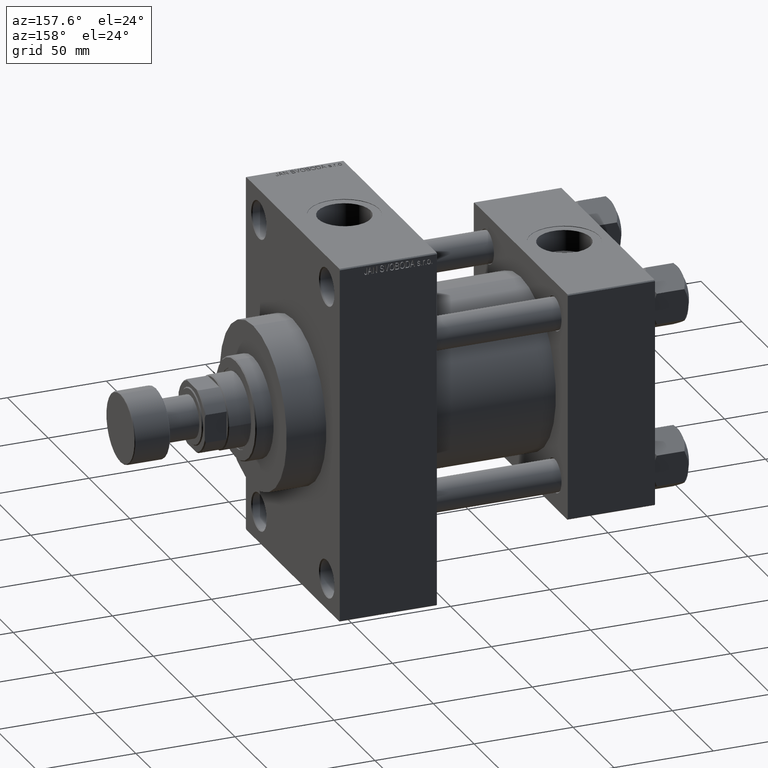
[diagram: clean part render]
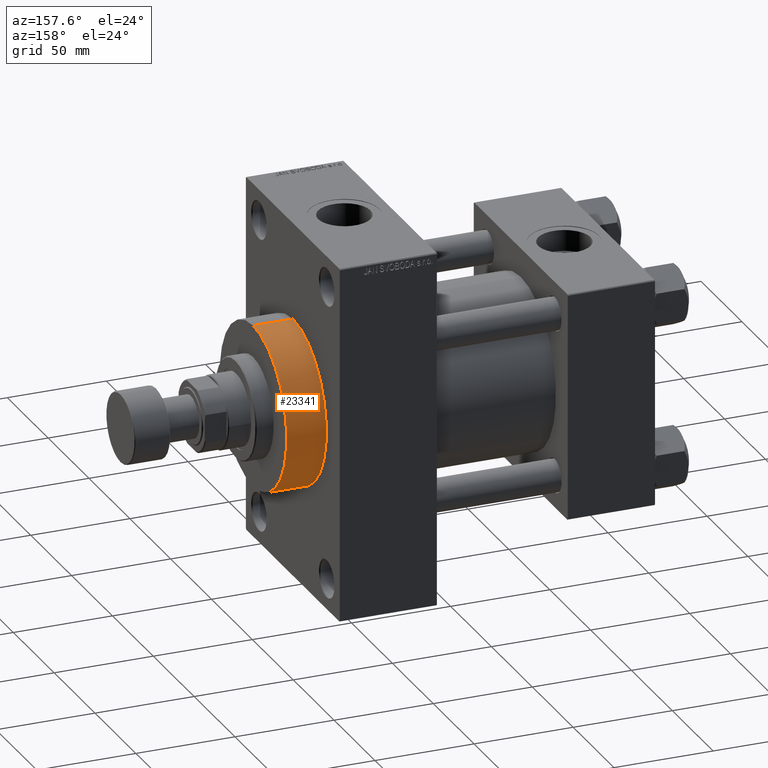
[diagram: same view with one face highlighted and labeled with its STEP entity id]
A machine part, auxiliary view. The second image highlights one B-rep face of the part: STEP entity #23341.
In plain terms, the highlighted cylindrical surface (partial cylindrical patch) has radius 41 mm, axis along (-1, -0, -0).
Its self-contained STEP definition (entity closure, byte-faithful):
#1641 = CARTESIAN_POINT ( 'NONE',  ( 179.0000000000000000, 0.000000000000000000, 41.00000000000000000 ) ) ;
#2254 = ORIENTED_EDGE ( 'NONE', *, *, #38127, .T. ) ;
#3250 = DIRECTION ( 'NONE',  ( 0.000000000000000000, 0.000000000000000000, 1.000000000000000000 ) ) ;
#3586 = CARTESIAN_POINT ( 'NONE',  ( 179.0000000000000000, 0.000000000000000000, 41.00000000000000000 ) ) ;
#3616 = EDGE_LOOP ( 'NONE', ( #21761, #34986, #2254, #41075 ) ) ;
#3865 = CARTESIAN_POINT ( 'NONE',  ( 179.0000000000000000, 5.021051876504148963E-15, -41.00000000000000000 ) ) ;
#6092 = VERTEX_POINT ( 'NONE', #3586 ) ;
#7386 = DIRECTION ( 'NONE',  ( 1.000000000000000000, 0.000000000000000000, 0.000000000000000000 ) ) ;
#8469 = DIRECTION ( 'NONE',  ( -1.000000000000000000, -0.000000000000000000, -0.000000000000000000 ) ) ;
#10193 = AXIS2_PLACEMENT_3D ( 'NONE', #27478, #7386, #41844 ) ;
#11102 = CARTESIAN_POINT ( 'NONE',  ( 179.0000000000000000, 5.021051876504148963E-15, -41.00000000000000000 ) ) ;
#14684 = AXIS2_PLACEMENT_3D ( 'NONE', #36731, #35774, #28218 ) ;
#16352 = VERTEX_POINT ( 'NONE', #36199 ) ;
#17372 = CARTESIAN_POINT ( 'NONE',  ( 179.0000000000000000, 0.000000000000000000, 0.000000000000000000 ) ) ;
#17606 = FACE_OUTER_BOUND ( 'NONE', #3616, .T. ) ;
#19341 = CIRCLE ( 'NONE', #14684, 41.00000000000000000 ) ;
#21761 = ORIENTED_EDGE ( 'NONE', *, *, #43470, .F. ) ;
#23341 = ADVANCED_FACE ( 'NONE', ( #17606 ), #36577, .T. ) ;
#24904 = VERTEX_POINT ( 'NONE', #3865 ) ;
#25168 = AXIS2_PLACEMENT_3D ( 'NONE', #17372, #33170, #3250 ) ;
#25270 = EDGE_CURVE ( 'NONE', #24904, #16352, #25690, .T. ) ;
#25690 = LINE ( 'NONE', #11102, #39255 ) ;
#26945 = LINE ( 'NONE', #1641, #46617 ) ;
#27478 = CARTESIAN_POINT ( 'NONE',  ( 179.0000000000000000, 0.000000000000000000, 0.000000000000000000 ) ) ;
#28218 = DIRECTION ( 'NONE',  ( 0.000000000000000000, 0.000000000000000000, -1.000000000000000000 ) ) ;
#30511 = CARTESIAN_POINT ( 'NONE',  ( 159.0000000000000000, 0.000000000000000000, 41.00000000000000000 ) ) ;
#33170 = DIRECTION ( 'NONE',  ( -1.000000000000000000, -0.000000000000000000, -0.000000000000000000 ) ) ;
#34986 = ORIENTED_EDGE ( 'NONE', *, *, #25270, .T. ) ;
#35774 = DIRECTION ( 'NONE',  ( 1.000000000000000000, 0.000000000000000000, 0.000000000000000000 ) ) ;
#36199 = CARTESIAN_POINT ( 'NONE',  ( 159.0000000000000000, 5.021051876504148963E-15, -41.00000000000000000 ) ) ;
#36577 = CYLINDRICAL_SURFACE ( 'NONE', #25168, 41.00000000000000000 ) ;
#36731 = CARTESIAN_POINT ( 'NONE',  ( 159.0000000000000000, 0.000000000000000000, 0.000000000000000000 ) ) ;
#38127 = EDGE_CURVE ( 'NONE', #16352, #38577, #19341, .T. ) ;
#38577 = VERTEX_POINT ( 'NONE', #30511 ) ;
#39255 = VECTOR ( 'NONE', #39822, 1000.000000000000000 ) ;
#39822 = DIRECTION ( 'NONE',  ( -1.000000000000000000, -0.000000000000000000, -0.000000000000000000 ) ) ;
#40394 = EDGE_CURVE ( 'NONE', #6092, #38577, #26945, .T. ) ;
#41075 = ORIENTED_EDGE ( 'NONE', *, *, #40394, .F. ) ;
#41844 = DIRECTION ( 'NONE',  ( 0.000000000000000000, 0.000000000000000000, -1.000000000000000000 ) ) ;
#43470 = EDGE_CURVE ( 'NONE', #24904, #6092, #45955, .T. ) ;
#45955 = CIRCLE ( 'NONE', #10193, 41.00000000000000000 ) ;
#46617 = VECTOR ( 'NONE', #8469, 1000.000000000000000 ) ;